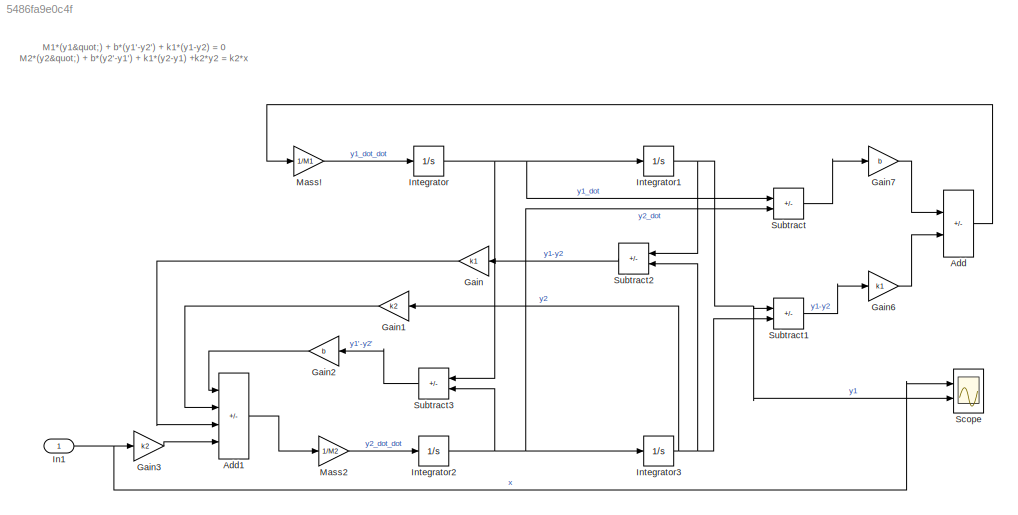
MODEL slx_5486fa9e0c4f
KIND model
CONFIG AbsTol = auto
CONFIG EnableMultiTasking = off
CONFIG FixedStep = auto
CONFIG MaxStep = auto
CONFIG MinStep = auto
CONFIG RelTol = 1e-3
CONFIG SampleTimeConstraint = Unconstrained
CONFIG SolverName = VariableStepAuto
CONFIG StartTime = 0.0
CONFIG StopTime = 100.0
WORKSPACE source: mxarray member
WORKSPACE M1 = 2500
WORKSPACE M2 = 320
WORKSPACE b = 350
WORKSPACE k1 = 80000
WORKSPACE k2 = 500000
BLOCK [Sum] Add
  IconShape = rectangular
  Inputs = --
  Ports = [2, 1]
BLOCK [Sum] Add1
  IconShape = rectangular
  Inputs = +-++
  Ports = [4, 1]
BLOCK [Gain] Gain
  Gain = k1
  NameLocation = top
BLOCK [Gain] Gain1
  Gain = k2
  NameLocation = top
BLOCK [Gain] Gain2
  Gain = b
  NameLocation = top
BLOCK [Gain] Gain3
  Gain = k2
BLOCK [Gain] Gain6
  Gain = k1
BLOCK [Gain] Gain7
  Gain = b
BLOCK [Inport] In1
BLOCK [Integrator] Integrator
  Ports = [1, 1]
BLOCK [Integrator] Integrator1
  Ports = [1, 1]
BLOCK [Integrator] Integrator2
  Ports = [1, 1]
BLOCK [Integrator] Integrator3
  Ports = [1, 1]
BLOCK [Gain] Mass!
  Gain = 1/M1
BLOCK [Gain] Mass2
  Gain = 1/M2
BLOCK [Scope] Scope
  Floating = off
  NumInputPorts = 2
  Ports = [2]
  ScopeSpecificationString = Simulink.scopes.TimeScopeBlockCfg('CurrentConfiguration', extmgr.ConfigurationSet(extmgr.Configuration('Core','General UI',true),extmgr.Configuration('Core','Source UI',true),extmgr.Configuration('Sources','WiredSimulink',true),extmgr.Configuration('Visuals','Time Domain',true,'SerializedDisplays',{struct('MinYLimReal','-0.02937','MaxYLimReal','0.12568','YLabelReal','','MinYLimMag','0.00000','MaxY...<+1377ch>
BLOCK [Sum] Subtract
  IconShape = rectangular
  Inputs = +-
  Ports = [2, 1]
BLOCK [Sum] Subtract1
  IconShape = rectangular
  Inputs = +-
  Ports = [2, 1]
BLOCK [Sum] Subtract2
  IconShape = rectangular
  Inputs = +-
  NameLocation = top
  Ports = [2, 1]
BLOCK [Sum] Subtract3
  IconShape = rectangular
  Inputs = +-
  NameLocation = top
  Ports = [2, 1]
ANNOTATION (root): M1*(y1") + b*(y1'-y2') + k1*(y1-y2) = 0 M2*(y2") + b*(y2'-y1') + k1*(y2-y1) +k2*y2 = k2*x
LINE Add1:1 -> Mass2:1
LINE Add:1 -> Mass!:1
LINE Gain1:1 -> Add1:2
LINE Gain2:1 -> Add1:1
LINE Gain3:1 -> Add1:4
LINE Gain6:1 -> Add:2
LINE Gain7:1 -> Add:1
LINE Gain:1 -> Add1:3
NET In1:1 -> Gain3:1, Scope:1
NET Integrator1:1 -> Scope:2, Subtract1:1, Subtract2:1
NET Integrator2:1 -> Integrator3:1, Subtract3:2, Subtract:2
NET Integrator3:1 -> Gain1:1, Subtract1:2, Subtract2:2
NET Integrator:1 -> Integrator1:1, Subtract3:1, Subtract:1
LINE Mass!:1 -> Integrator:1
LINE Mass2:1 -> Integrator2:1
LINE Subtract1:1 -> Gain6:1
LINE Subtract2:1 -> Gain:1
LINE Subtract3:1 -> Gain2:1
LINE Subtract:1 -> Gain7:1
note: NET lines group one-source signal fan-out (src -> all destinations, sorted); 1:1 wires keep LINE
